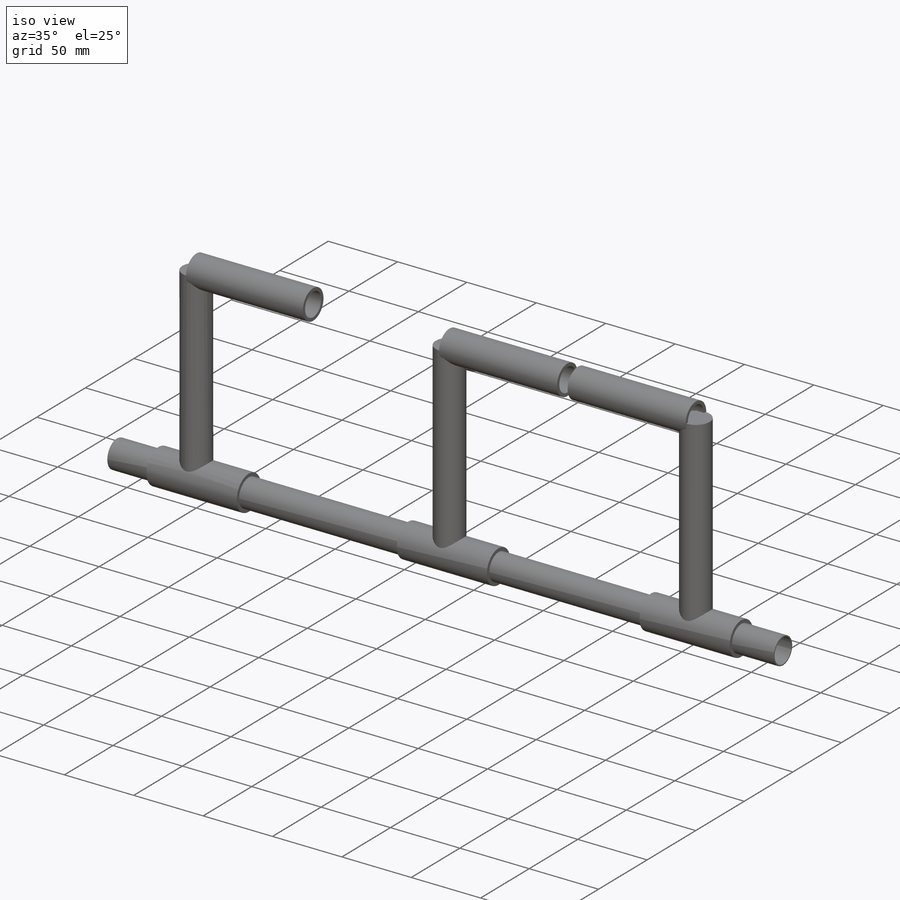
[diagram: iso view]
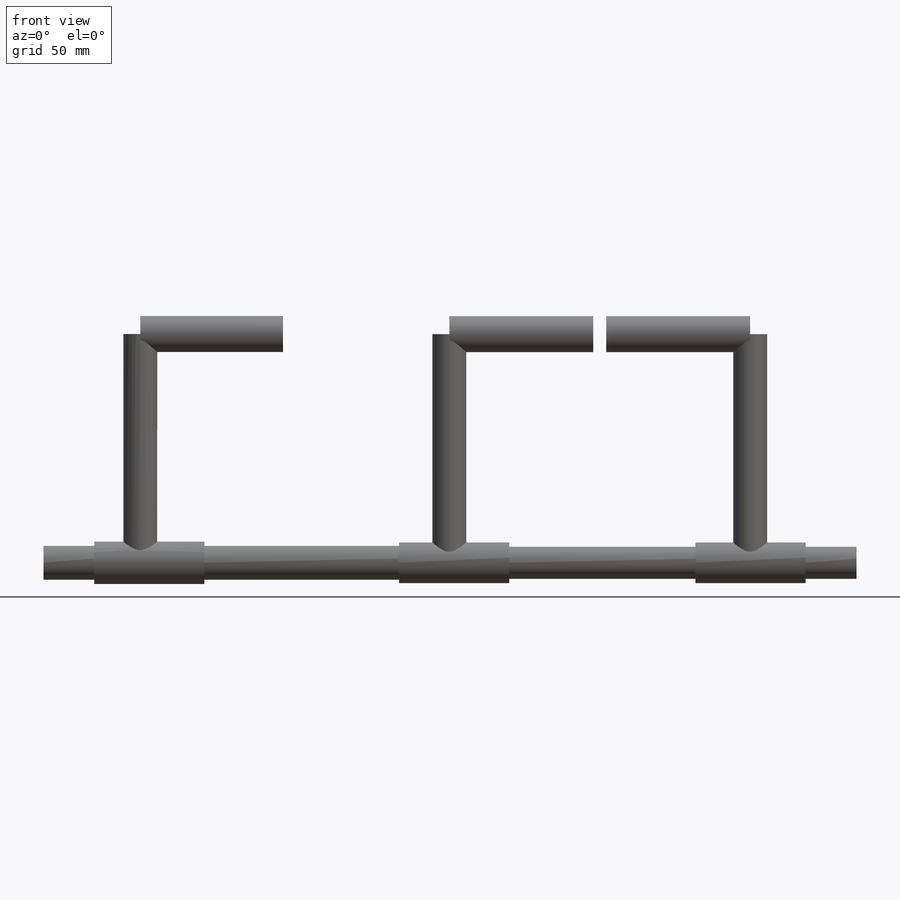
[diagram: front view]
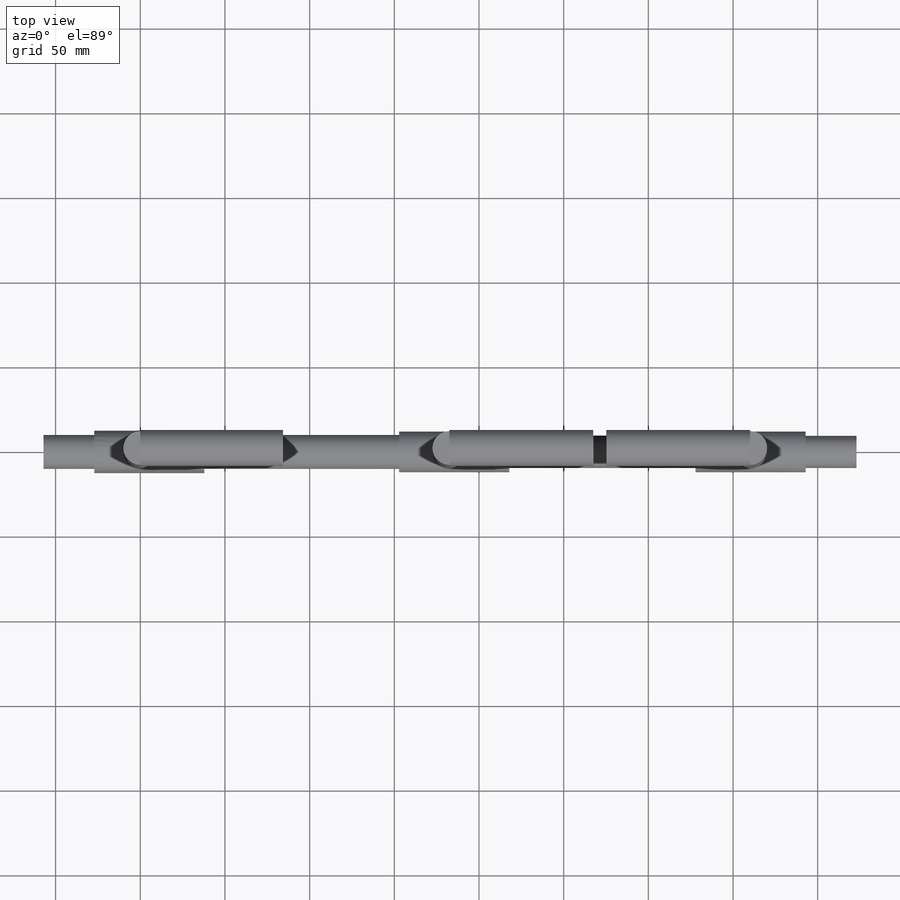
[diagram: top view]
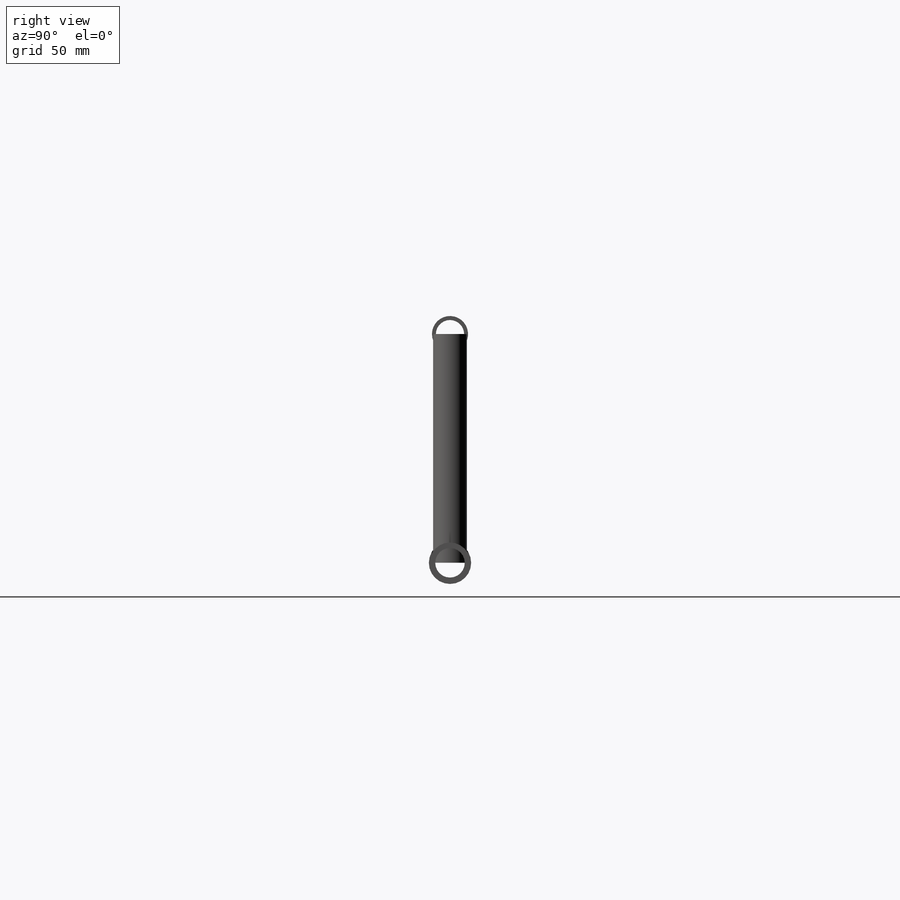
[diagram: right view]
SOLIDWORKS PART (.sldprt)
format: sldprt  version: not decoded by parser v0  size: 248,320 bytes
history: native  units: mm
features: sketch x10, extrude x2, plane x2, material x1, revolve x1, cut_extrude x1 (+13 scaffold rows collapsed)
feature tree (30):
  scaffold x13  (default folders/planes/origin — collapsed)
  material  "Material <not specified>"
  sketch  "Sketch1"  dims[D1=~105.078233mm]
  revolve  "Revolve3"  Angle=360deg
  sketch  "Sketch2"  dims[D1=20.0mm]
  sketch  "Sketch3"  dims[D1=~17.443332mm]
  cut_extrude  "Cut-Extrude2"  Depth=500mm
  sketch  "Sketch6"  dims[D1=20.0mm]
  extrude  "Boss-Extrude1"  Depth=135.069363mm
  sketch  "Sketch7"  dims[D1=~56.254181mm]
  plane  "Plane1"
  sketch  "Sketch11"  dims[In_dia=16.7mm Out_dia=21.3mm]
  sketch  "Sketch13"  dims[D1=20.0mm]
  extrude  "Boss-Extrude2"  Depth=135mm
  sketch  "Sketch14"  dims[D1=~213.380643mm]
  sketch  "Sketch15"  dims[D1=~27.732939mm]
  plane  "Plane2"
  sketch  "Sketch12"  dims[In_dia=16.7mm Out_dia=21.3mm]
decode coverage: 14 of 14 modeling features carry decoded parameters
note: ~ marks probable driven/reference dimensions
note: suppression state not decoded; provenance and decode notes live in map.json
